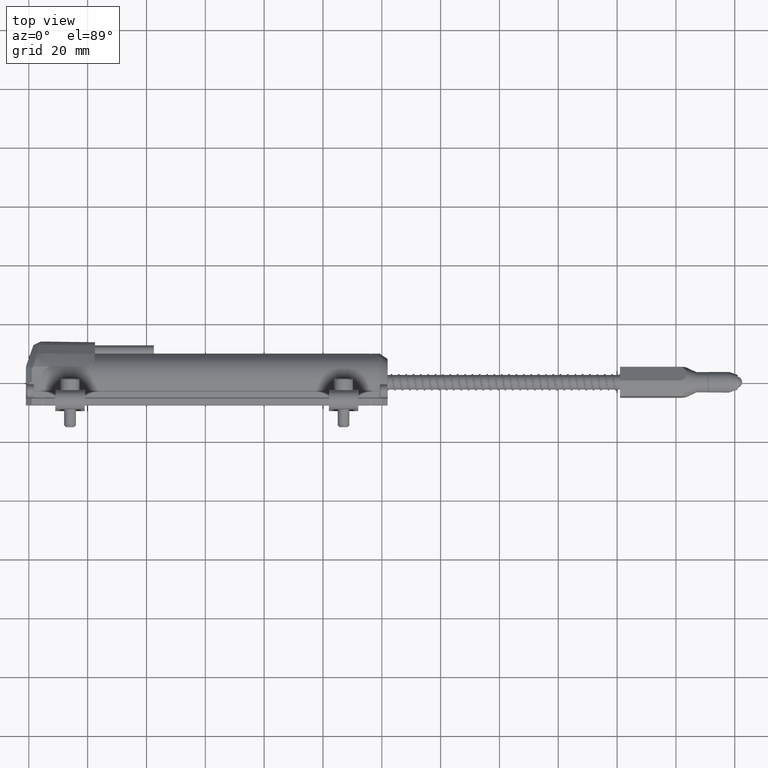
[diagram: clean part render]
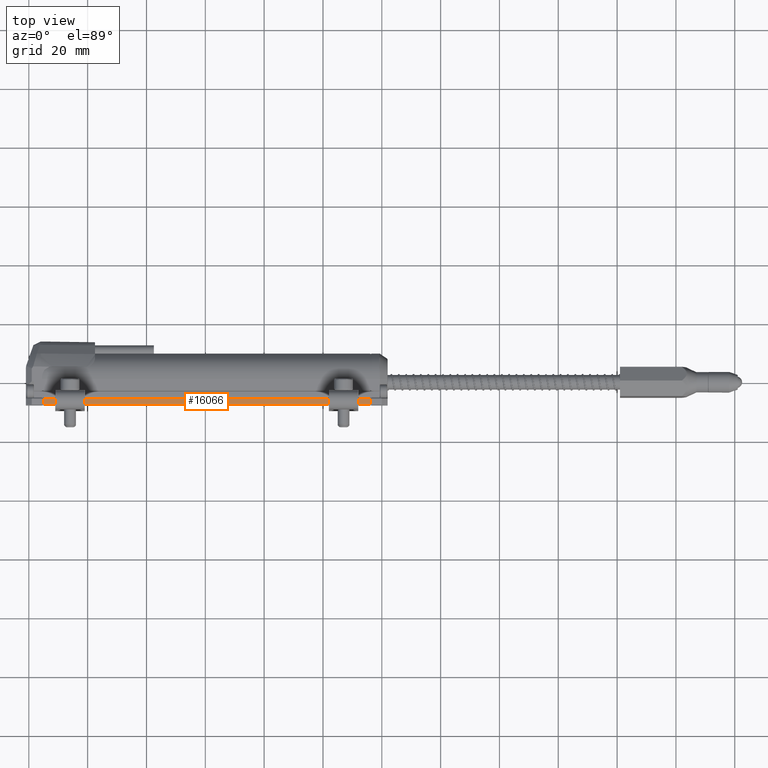
[diagram: same view with one face highlighted and labeled with its STEP entity id]
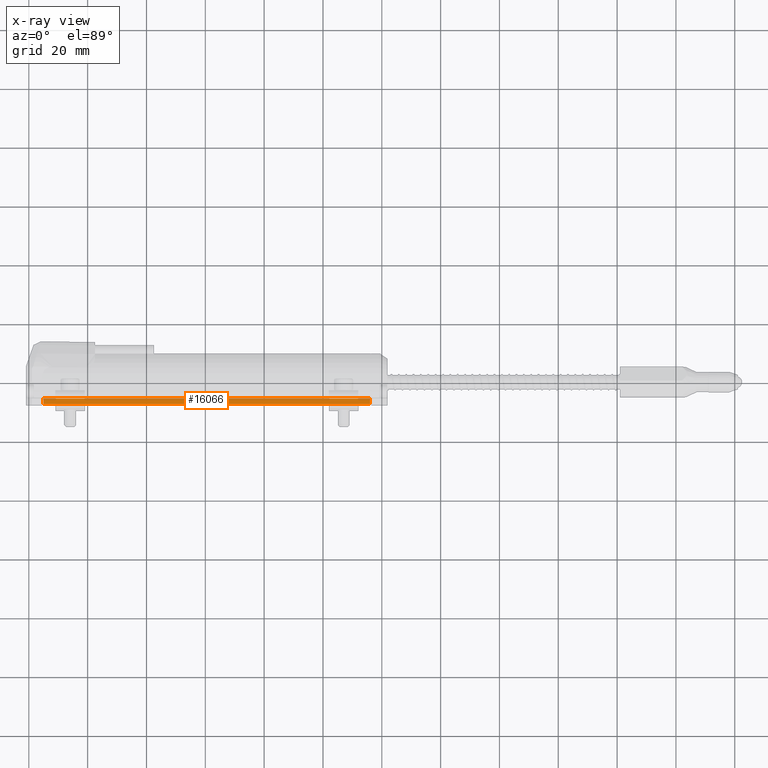
[diagram: x-ray of the same camera — body ghosted, the highlighted face saturated]
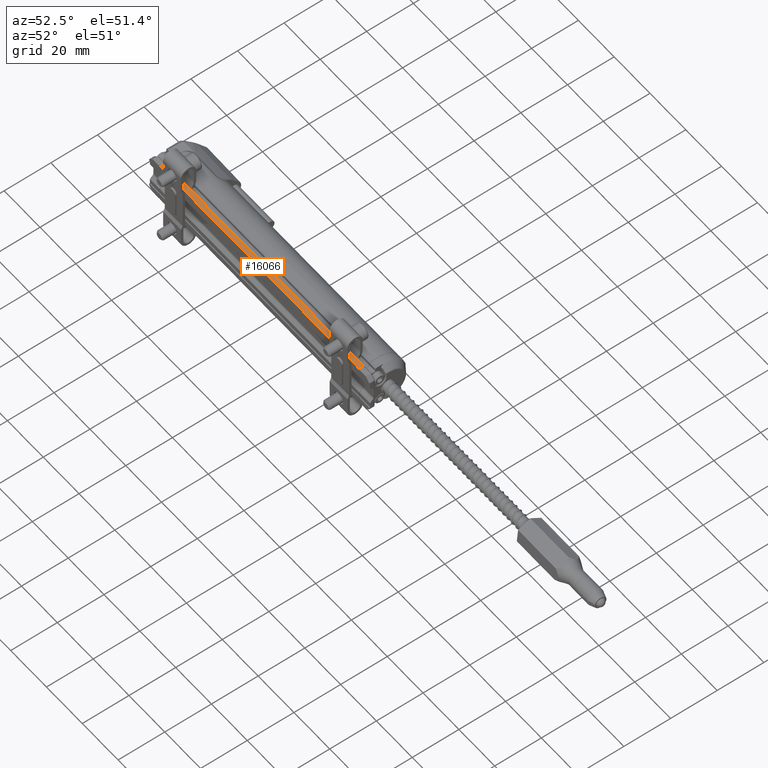
[diagram: same view with one face highlighted and labeled with its STEP entity id]
A machine part, top view. The second image highlights one B-rep face of the part: STEP entity #16066.
The next image is the same camera in x-ray: the body ghosted, the highlighted face saturated — about 0% of this face is hidden behind the body in this view.
A second angle (auxiliary view) of the same face is appended — the face is thin or edge-on in the first view.
In plain terms, the highlighted planar face has unit normal (0, 0, -1).
Its self-contained STEP definition (entity closure, byte-faithful):
#337 = VERTEX_POINT ( 'NONE', #34687 ) ;
#838 = AXIS2_PLACEMENT_3D ( 'NONE', #23928, #2118, #20589 ) ;
#1008 = EDGE_CURVE ( 'NONE', #32174, #337, #20909, .T. ) ;
#1477 = EDGE_CURVE ( 'NONE', #5888, #32174, #29694, .T. ) ;
#2100 = CARTESIAN_POINT ( 'NONE',  ( -0.1574803149606300579, -0.3070866141732283561, 0.3543307086614176926 ) ) ;
#2118 = DIRECTION ( 'NONE',  ( 2.391543914929064682E-17, 1.201068257667177748E-16, -1.000000000000000000 ) ) ;
#2914 = CARTESIAN_POINT ( 'NONE',  ( -0.1574803149606300579, -0.2244094488316446534, 0.3543307086639671533 ) ) ;
#2949 = CARTESIAN_POINT ( 'NONE',  ( -3.543307086614172263, -0.2244094488341940863, 0.3543307086614176371 ) ) ;
#4558 = ORIENTED_EDGE ( 'NONE', *, *, #16105, .T. ) ;
#5097 = DIRECTION ( 'NONE',  ( -1.033975765673499961E-25, -1.000000000000000000, -1.201068257667177748E-16 ) ) ;
#5888 = VERTEX_POINT ( 'NONE', #10373 ) ;
#6521 = LINE ( 'NONE', #22519, #8799 ) ;
#6677 = CARTESIAN_POINT ( 'NONE',  ( -4.527559055118110187, -0.2992125984251968740, 0.3543307086614175816 ) ) ;
#7211 = PLANE ( 'NONE',  #838 ) ;
#8046 = DIRECTION ( 'NONE',  ( 1.000000000000000000, -1.033975794397574105E-25, 2.391543914929064682E-17 ) ) ;
#8799 = VECTOR ( 'NONE', #30460, 39.37007874015748143 ) ;
#8834 = EDGE_CURVE ( 'NONE', #337, #33128, #6521, .T. ) ;
#10373 = CARTESIAN_POINT ( 'NONE',  ( -4.527559055118110187, -0.2244094488316446534, 0.3543307086639669867 ) ) ;
#12005 = ORIENTED_EDGE ( 'NONE', *, *, #8834, .F. ) ;
#15428 = VECTOR ( 'NONE', #5097, 39.37007874015748143 ) ;
#15972 = DIRECTION ( 'NONE',  ( -1.033975765673499961E-25, -1.000000000000000000, -1.201068257667177748E-16 ) ) ;
#16066 = ADVANCED_FACE ( 'NONE', ( #20751 ), #7211, .F. ) ;
#16105 = EDGE_CURVE ( 'NONE', #5888, #33128, #28677, .T. ) ;
#18111 = CARTESIAN_POINT ( 'NONE',  ( -4.527559055118110187, -0.3070866141732283561, 0.3543307086614175816 ) ) ;
#20327 = EDGE_LOOP ( 'NONE', ( #4558, #12005, #24040, #33558 ) ) ;
#20589 = DIRECTION ( 'NONE',  ( -1.000000000000000000, 1.033975794397574105E-25, -2.391543914929064682E-17 ) ) ;
#20751 = FACE_OUTER_BOUND ( 'NONE', #20327, .T. ) ;
#20909 = LINE ( 'NONE', #2100, #33106 ) ;
#22519 = CARTESIAN_POINT ( 'NONE',  ( -3.543307086614172263, -0.2992125984251968740, 0.3543307086614176371 ) ) ;
#23928 = CARTESIAN_POINT ( 'NONE',  ( -3.543307086614172263, -0.2992125984251968740, 0.3543307086614176371 ) ) ;
#24040 = ORIENTED_EDGE ( 'NONE', *, *, #1008, .F. ) ;
#26974 = VECTOR ( 'NONE', #8046, 39.37007874015748143 ) ;
#28677 = LINE ( 'NONE', #18111, #15428 ) ;
#29694 = LINE ( 'NONE', #2949, #26974 ) ;
#30460 = DIRECTION ( 'NONE',  ( -1.000000000000000000, 1.033975794397574105E-25, -2.391543914929064682E-17 ) ) ;
#32174 = VERTEX_POINT ( 'NONE', #2914 ) ;
#33106 = VECTOR ( 'NONE', #15972, 39.37007874015748143 ) ;
#33128 = VERTEX_POINT ( 'NONE', #6677 ) ;
#33558 = ORIENTED_EDGE ( 'NONE', *, *, #1477, .F. ) ;
#34687 = CARTESIAN_POINT ( 'NONE',  ( -0.1574803149606300579, -0.2992125984251968740, 0.3543307086614176926 ) ) ;